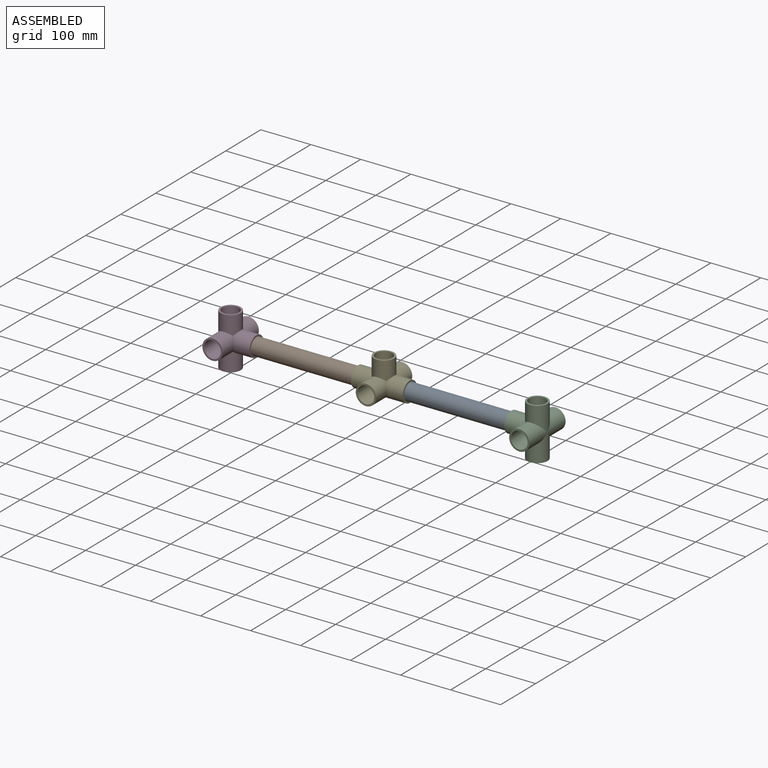
[diagram: assembled view]
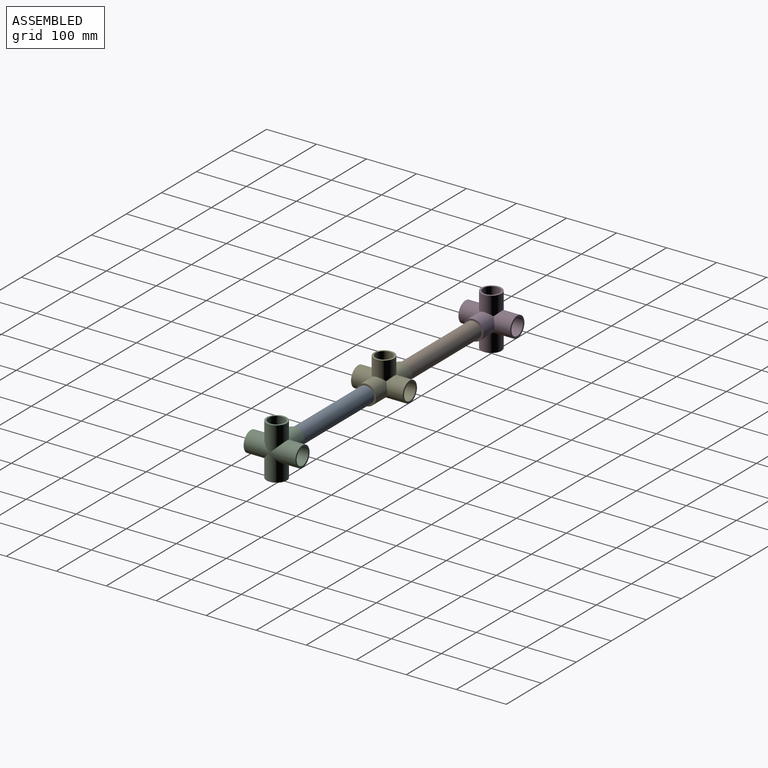
[diagram: assembled view, second angle]
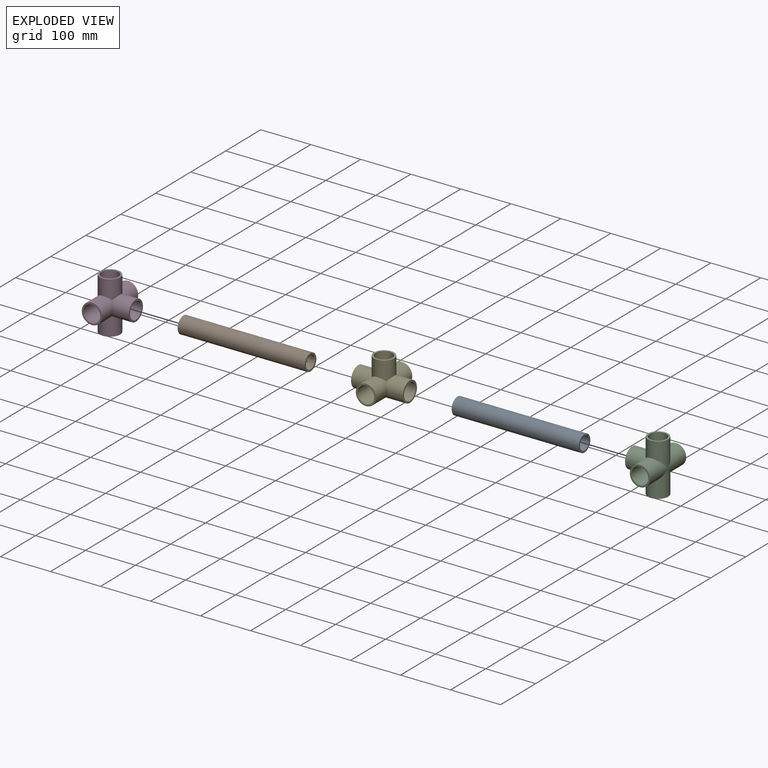
[diagram: exploded view]
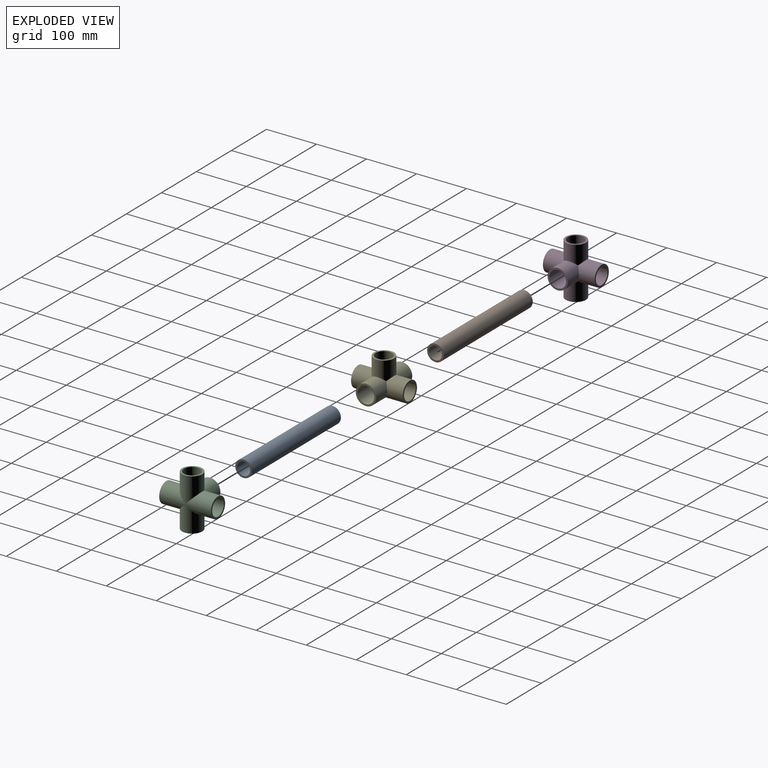
[diagram: exploded view, second angle]
ASSEMBLY  parts=5 mates=4
PART A: 4 faces, bbox 254x33.4x33.4 mm
  f0: cylinder r=13.07mm len=254mm, axis (-1,0,0), area 20856.1mm2, adj f2,f3
  f1: cylinder r=16.7mm len=254mm, axis (-1,0,0), area 26652.8mm2, adj f2,f3
  f2: plane 33.4x33.4mm, normal (1,0,0), area 339.7mm2, adj f0,f1
  f3: plane 33.4x33.4mm, normal (-1,0,0), area 339.7mm2, adj f0,f1
PART B: same geometry as A
PART C: 15 faces, bbox 103.5x103.5x72 mm
  f0: cylinder r=16.7mm len=51.75mm, axis (-1,0,0), area 4083.8mm2, adj f2,f3,f9,f14
  f1: cylinder r=16.7mm len=51.75mm, axis (-1,0,0), area 4083.8mm2, adj f2,f3,f5,f9
  f2: cylinder r=16.7mm len=51.75mm, axis (0,1,0), area 4083.8mm2, adj f0,f1,f9,f10
  f3: cylinder r=16.7mm len=51.75mm, axis (0,1,0), area 4083.8mm2, adj f0,f1,f9,f11
  f4: cylinder r=20.26mm len=51.75mm, axis (-1,0,0), area 4605.6mm2, adj f5,f6,f7,f8
  f5: plane 40.51x40.51mm, normal (1,0,0), area 412.9mm2, adj f1,f4
  f6: cylinder r=20.26mm len=51.75mm, axis (0,1,0), area 4605.6mm2, adj f4,f8,f10,f13
  f7: cylinder r=20.26mm len=51.75mm, axis (0,1,0), area 4605.6mm2, adj f4,f8,f11,f13
  f8: cylinder r=20.26mm len=40.51mm, axis (0,0,-1), area 4265.7mm2, adj f4,f6,f7,f12,f13
  f9: cylinder r=16.7mm len=39.94mm, axis (0,0,-1), area 3852.8mm2, adj f0,f1,f2,f3,f12
  f10: plane 40.51x40.51mm, normal (0,-1,0), area 412.9mm2, adj f2,f6
  f11: plane 40.51x40.51mm, normal (0,1,0), area 412.9mm2, adj f3,f7
  f12: plane 40.51x40.51mm, normal (0,0,1), area 412.9mm2, adj f8,f9
  f13: cylinder r=20.26mm len=51.75mm, axis (-1,0,0), area 4605.6mm2, adj f6,f7,f8,f14
  f14: plane 40.51x40.51mm, normal (-1,0,0), area 412.9mm2, adj f0,f13
PART D: same geometry as C
PART E: same geometry as C
PLACE A t=(333.06,0,51.75)mm
PLACE B t=(26.35,0,51.75)mm
PLACE C rot(axis=(0.71,0,-0.71),180deg) t=(613.41,0,51.75)mm
PLACE D rot(axis=(0,1,0),90deg) t=(0,0,51.75)mm
PLACE E t=(306.7,0,51.75)mm
MATE fastened D.f8 <-> B.f0  axis (1,0,0) through (51.75,0,51.75)mm
MATE fastened C.f8 <-> A.f0  axis (-1,0,0) through (561.66,0,51.75)mm
MATE fastened E.f4 <-> A.f0  axis (1,0,0) through (358.46,0,51.75)mm
MATE fastened E.f4 <-> B.f0  axis (-1,0,0) through (254.95,0,51.75)mm
